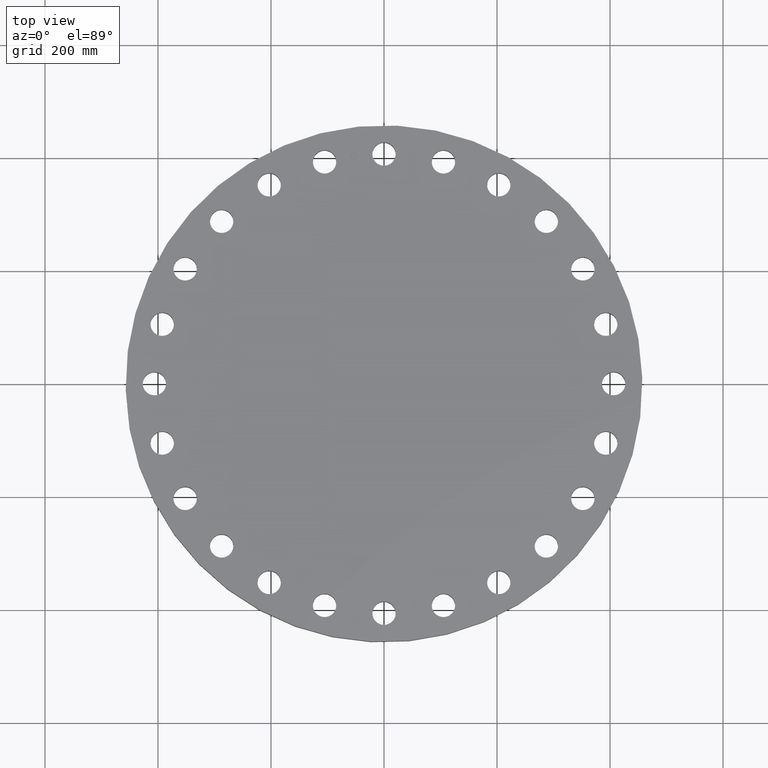
[diagram: clean part render]
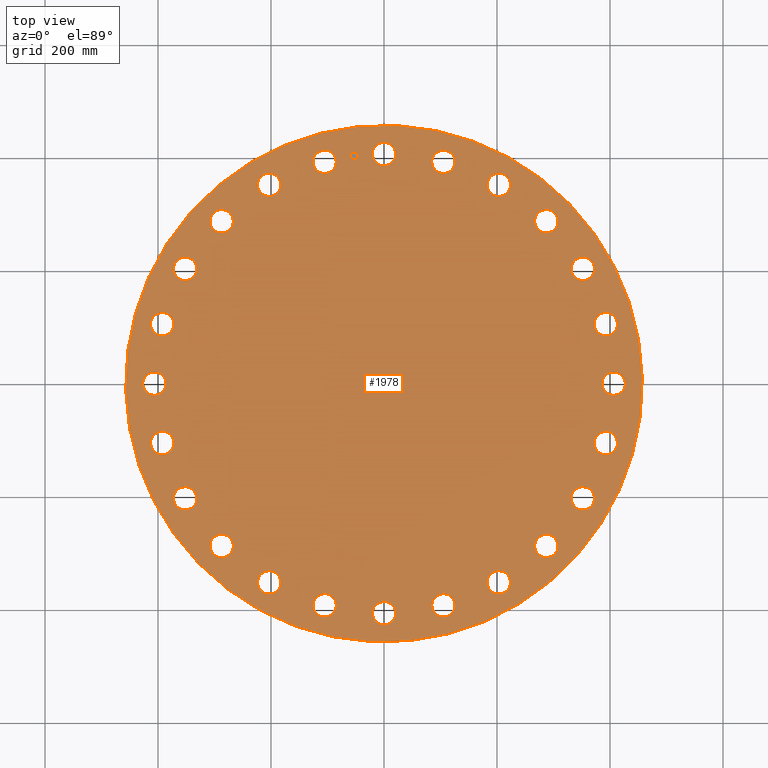
[diagram: same view with one face highlighted and labeled with its STEP entity id]
A machine part, top view. The second image highlights one B-rep face of the part: STEP entity #1978.
In plain terms, the highlighted planar face has unit normal (0, 0, -1).
Its self-contained STEP definition (entity closure, byte-faithful):
#126=AXIS2_PLACEMENT_3D('Circle Axis2P3D',#124,#125,$) ;
#143=AXIS2_PLACEMENT_3D('Circle Axis2P3D',#141,#142,$) ;
#183=AXIS2_PLACEMENT_3D('Circle Axis2P3D',#181,#182,$) ;
#200=AXIS2_PLACEMENT_3D('Circle Axis2P3D',#198,#199,$) ;
#240=AXIS2_PLACEMENT_3D('Circle Axis2P3D',#238,#239,$) ;
#257=AXIS2_PLACEMENT_3D('Circle Axis2P3D',#255,#256,$) ;
#297=AXIS2_PLACEMENT_3D('Circle Axis2P3D',#295,#296,$) ;
#314=AXIS2_PLACEMENT_3D('Circle Axis2P3D',#312,#313,$) ;
#354=AXIS2_PLACEMENT_3D('Circle Axis2P3D',#352,#353,$) ;
#371=AXIS2_PLACEMENT_3D('Circle Axis2P3D',#369,#370,$) ;
#411=AXIS2_PLACEMENT_3D('Circle Axis2P3D',#409,#410,$) ;
#428=AXIS2_PLACEMENT_3D('Circle Axis2P3D',#426,#427,$) ;
#468=AXIS2_PLACEMENT_3D('Circle Axis2P3D',#466,#467,$) ;
#485=AXIS2_PLACEMENT_3D('Circle Axis2P3D',#483,#484,$) ;
#525=AXIS2_PLACEMENT_3D('Circle Axis2P3D',#523,#524,$) ;
#542=AXIS2_PLACEMENT_3D('Circle Axis2P3D',#540,#541,$) ;
#582=AXIS2_PLACEMENT_3D('Circle Axis2P3D',#580,#581,$) ;
#599=AXIS2_PLACEMENT_3D('Circle Axis2P3D',#597,#598,$) ;
#639=AXIS2_PLACEMENT_3D('Circle Axis2P3D',#637,#638,$) ;
#656=AXIS2_PLACEMENT_3D('Circle Axis2P3D',#654,#655,$) ;
#696=AXIS2_PLACEMENT_3D('Circle Axis2P3D',#694,#695,$) ;
#713=AXIS2_PLACEMENT_3D('Circle Axis2P3D',#711,#712,$) ;
#753=AXIS2_PLACEMENT_3D('Circle Axis2P3D',#751,#752,$) ;
#770=AXIS2_PLACEMENT_3D('Circle Axis2P3D',#768,#769,$) ;
#810=AXIS2_PLACEMENT_3D('Circle Axis2P3D',#808,#809,$) ;
#827=AXIS2_PLACEMENT_3D('Circle Axis2P3D',#825,#826,$) ;
#867=AXIS2_PLACEMENT_3D('Circle Axis2P3D',#865,#866,$) ;
#884=AXIS2_PLACEMENT_3D('Circle Axis2P3D',#882,#883,$) ;
#924=AXIS2_PLACEMENT_3D('Circle Axis2P3D',#922,#923,$) ;
#941=AXIS2_PLACEMENT_3D('Circle Axis2P3D',#939,#940,$) ;
#981=AXIS2_PLACEMENT_3D('Circle Axis2P3D',#979,#980,$) ;
#998=AXIS2_PLACEMENT_3D('Circle Axis2P3D',#996,#997,$) ;
#1038=AXIS2_PLACEMENT_3D('Circle Axis2P3D',#1036,#1037,$) ;
#1055=AXIS2_PLACEMENT_3D('Circle Axis2P3D',#1053,#1054,$) ;
#1095=AXIS2_PLACEMENT_3D('Circle Axis2P3D',#1093,#1094,$) ;
#1112=AXIS2_PLACEMENT_3D('Circle Axis2P3D',#1110,#1111,$) ;
#1152=AXIS2_PLACEMENT_3D('Circle Axis2P3D',#1150,#1151,$) ;
#1169=AXIS2_PLACEMENT_3D('Circle Axis2P3D',#1167,#1168,$) ;
#1209=AXIS2_PLACEMENT_3D('Circle Axis2P3D',#1207,#1208,$) ;
#1226=AXIS2_PLACEMENT_3D('Circle Axis2P3D',#1224,#1225,$) ;
#1266=AXIS2_PLACEMENT_3D('Circle Axis2P3D',#1264,#1265,$) ;
#1283=AXIS2_PLACEMENT_3D('Circle Axis2P3D',#1281,#1282,$) ;
#1323=AXIS2_PLACEMENT_3D('Circle Axis2P3D',#1321,#1322,$) ;
#1340=AXIS2_PLACEMENT_3D('Circle Axis2P3D',#1338,#1339,$) ;
#1380=AXIS2_PLACEMENT_3D('Circle Axis2P3D',#1378,#1379,$) ;
#1397=AXIS2_PLACEMENT_3D('Circle Axis2P3D',#1395,#1396,$) ;
#1602=AXIS2_PLACEMENT_3D('Circle Axis2P3D',#1600,#1601,$) ;
#1621=AXIS2_PLACEMENT_3D('Circle Axis2P3D',#1619,#1620,$) ;
#1652=AXIS2_PLACEMENT_3D('Circle Axis2P3D',#1650,#1651,$) ;
#1664=AXIS2_PLACEMENT_3D('Circle Axis2P3D',#1662,#1663,$) ;
#1858=AXIS2_PLACEMENT_3D('Plane Axis2P3D',#1855,#1856,#1857) ;
#1962=AXIS2_PLACEMENT_3D('Circle Axis2P3D',#1960,#1961,$) ;
#1971=AXIS2_PLACEMENT_3D('Circle Axis2P3D',#1969,#1970,$) ;
#107=CARTESIAN_POINT('Vertex',(4.73083481058,14.8922801797,2.69000000001)) ;
#121=CARTESIAN_POINT('Vertex',(3.55137463273,16.0173462617,2.69000000001)) ;
#124=CARTESIAN_POINT('Axis2P3D Location',(4.14110472166,15.4548132207,2.69000000001)) ;
#141=CARTESIAN_POINT('Axis2P3D Location',(4.14110472166,15.4548132207,2.69000000001)) ;
#164=CARTESIAN_POINT('Vertex',(-0.715229787944,-15.6092681861,2.69000000001)) ;
#178=CARTESIAN_POINT('Vertex',(0.715229787944,-16.390731814,2.69000000001)) ;
#181=CARTESIAN_POINT('Axis2P3D Location',(1.95943487864E-015,-16.0000000001,2.69000000001)) ;
#198=CARTESIAN_POINT('Axis2P3D Location',(1.95943487864E-015,-16.0000000001,2.69000000001)) ;
#221=CARTESIAN_POINT('Vertex',(-3.34911696277,15.2625103612,2.69000000001)) ;
#235=CARTESIAN_POINT('Vertex',(-4.93309248054,15.6471160802,2.69000000001)) ;
#238=CARTESIAN_POINT('Axis2P3D Location',(-4.14110472166,15.4548132207,2.69000000001)) ;
#255=CARTESIAN_POINT('Axis2P3D Location',(-4.14110472166,15.4548132207,2.69000000001)) ;
#278=CARTESIAN_POINT('Vertex',(3.34911696277,-15.2625103612,2.69000000001)) ;
#292=CARTESIAN_POINT('Vertex',(4.93309248054,-15.6471160802,2.69000000001)) ;
#295=CARTESIAN_POINT('Axis2P3D Location',(4.14110472166,-15.4548132207,2.69000000001)) ;
#312=CARTESIAN_POINT('Axis2P3D Location',(4.14110472166,-15.4548132207,2.69000000001)) ;
#335=CARTESIAN_POINT('Vertex',(-7.18522692715,13.8756376776,2.69000000001)) ;
#349=CARTESIAN_POINT('Vertex',(-8.81477307292,13.8371752436,2.69000000001)) ;
#352=CARTESIAN_POINT('Axis2P3D Location',(-8.00000000003,13.8564064606,2.69000000001)) ;
#369=CARTESIAN_POINT('Axis2P3D Location',(-8.00000000003,13.8564064606,2.69000000001)) ;
#392=CARTESIAN_POINT('Vertex',(7.18522692715,-13.8756376776,2.69000000001)) ;
#406=CARTESIAN_POINT('Vertex',(8.81477307292,-13.8371752436,2.69000000001)) ;
#409=CARTESIAN_POINT('Axis2P3D Location',(8.00000000003,-13.8564064606,2.69000000001)) ;
#426=CARTESIAN_POINT('Axis2P3D Location',(8.00000000003,-13.8564064606,2.69000000001)) ;
#449=CARTESIAN_POINT('Vertex',(-10.5316755506,11.5431632169,2.69000000001)) ;
#463=CARTESIAN_POINT('Vertex',(-12.0957414475,11.0842537811,2.69000000001)) ;
#466=CARTESIAN_POINT('Axis2P3D Location',(-11.313708499,11.313708499,2.69000000001)) ;
#483=CARTESIAN_POINT('Axis2P3D Location',(-11.313708499,11.313708499,2.69000000001)) ;
#506=CARTESIAN_POINT('Vertex',(10.5316755506,-11.5431632169,2.69000000001)) ;
#520=CARTESIAN_POINT('Vertex',(12.0957414475,-11.0842537811,2.69000000001)) ;
#523=CARTESIAN_POINT('Axis2P3D Location',(11.313708499,-11.313708499,2.69000000001)) ;
#540=CARTESIAN_POINT('Axis2P3D Location',(11.313708499,-11.313708499,2.69000000001)) ;
#563=CARTESIAN_POINT('Vertex',(-13.1604078897,8.42404125895,2.69000000001)) ;
#577=CARTESIAN_POINT('Vertex',(-14.5524050315,7.57595874111,2.69000000001)) ;
#580=CARTESIAN_POINT('Axis2P3D Location',(-13.8564064606,8.00000000003,2.69000000001)) ;
#597=CARTESIAN_POINT('Axis2P3D Location',(-13.8564064606,8.00000000003,2.69000000001)) ;
#620=CARTESIAN_POINT('Vertex',(13.1604078897,-8.42404125895,2.69000000001)) ;
#634=CARTESIAN_POINT('Vertex',(14.5524050315,-7.57595874111,2.69000000001)) ;
#637=CARTESIAN_POINT('Axis2P3D Location',(13.8564064606,-8.00000000003,2.69000000001)) ;
#654=CARTESIAN_POINT('Axis2P3D Location',(13.8564064606,-8.00000000003,2.69000000001)) ;
#677=CARTESIAN_POINT('Vertex',(-14.8922801797,4.73083481058,2.69000000001)) ;
#691=CARTESIAN_POINT('Vertex',(-16.0173462617,3.55137463273,2.69000000001)) ;
#694=CARTESIAN_POINT('Axis2P3D Location',(-15.4548132207,4.14110472166,2.69000000001)) ;
#711=CARTESIAN_POINT('Axis2P3D Location',(-15.4548132207,4.14110472166,2.69000000001)) ;
#734=CARTESIAN_POINT('Vertex',(14.8922801797,-4.73083481058,2.69000000001)) ;
#748=CARTESIAN_POINT('Vertex',(16.0173462617,-3.55137463273,2.69000000001)) ;
#751=CARTESIAN_POINT('Axis2P3D Location',(15.4548132207,-4.14110472166,2.69000000001)) ;
#768=CARTESIAN_POINT('Axis2P3D Location',(15.4548132207,-4.14110472166,2.69000000001)) ;
#791=CARTESIAN_POINT('Vertex',(-15.6092681861,0.715229787944,2.69000000001)) ;
#805=CARTESIAN_POINT('Vertex',(-16.390731814,-0.715229787944,2.69000000001)) ;
#808=CARTESIAN_POINT('Axis2P3D Location',(-16.0000000001,-7.01222441556E-016,2.69000000001)) ;
#825=CARTESIAN_POINT('Axis2P3D Location',(-16.0000000001,-7.01222441556E-016,2.69000000001)) ;
#848=CARTESIAN_POINT('Vertex',(15.6092681861,-0.715229787944,2.69000000001)) ;
#862=CARTESIAN_POINT('Vertex',(16.390731814,0.715229787944,2.69000000001)) ;
#865=CARTESIAN_POINT('Axis2P3D Location',(16.0000000001,9.79717439322E-016,2.69000000001)) ;
#882=CARTESIAN_POINT('Axis2P3D Location',(16.0000000001,9.79717439322E-016,2.69000000001)) ;
#905=CARTESIAN_POINT('Vertex',(-15.2625103612,-3.34911696277,2.69000000001)) ;
#919=CARTESIAN_POINT('Vertex',(-15.6471160802,-4.93309248054,2.69000000001)) ;
#922=CARTESIAN_POINT('Axis2P3D Location',(-15.4548132207,-4.14110472166,2.69000000001)) ;
#939=CARTESIAN_POINT('Axis2P3D Location',(-15.4548132207,-4.14110472166,2.69000000001)) ;
#962=CARTESIAN_POINT('Vertex',(15.2625103612,3.34911696277,2.69000000001)) ;
#976=CARTESIAN_POINT('Vertex',(15.6471160802,4.93309248054,2.69000000001)) ;
#979=CARTESIAN_POINT('Axis2P3D Location',(15.4548132207,4.14110472166,2.69000000001)) ;
#996=CARTESIAN_POINT('Axis2P3D Location',(15.4548132207,4.14110472166,2.69000000001)) ;
#1019=CARTESIAN_POINT('Vertex',(-13.8756376776,-7.18522692715,2.69000000001)) ;
#1033=CARTESIAN_POINT('Vertex',(-13.8371752436,-8.81477307292,2.69000000001)) ;
#1036=CARTESIAN_POINT('Axis2P3D Location',(-13.8564064606,-8.00000000003,2.69000000001)) ;
#1053=CARTESIAN_POINT('Axis2P3D Location',(-13.8564064606,-8.00000000003,2.69000000001)) ;
#1076=CARTESIAN_POINT('Vertex',(13.8756376776,7.18522692715,2.69000000001)) ;
#1090=CARTESIAN_POINT('Vertex',(13.8371752436,8.81477307292,2.69000000001)) ;
#1093=CARTESIAN_POINT('Axis2P3D Location',(13.8564064606,8.00000000003,2.69000000001)) ;
#1110=CARTESIAN_POINT('Axis2P3D Location',(13.8564064606,8.00000000003,2.69000000001)) ;
#1133=CARTESIAN_POINT('Vertex',(-11.5431632169,-10.5316755506,2.69000000001)) ;
#1147=CARTESIAN_POINT('Vertex',(-11.0842537811,-12.0957414475,2.69000000001)) ;
#1150=CARTESIAN_POINT('Axis2P3D Location',(-11.313708499,-11.313708499,2.69000000001)) ;
#1167=CARTESIAN_POINT('Axis2P3D Location',(-11.313708499,-11.313708499,2.69000000001)) ;
#1190=CARTESIAN_POINT('Vertex',(11.5431632169,10.5316755506,2.69000000001)) ;
#1204=CARTESIAN_POINT('Vertex',(11.0842537811,12.0957414475,2.69000000001)) ;
#1207=CARTESIAN_POINT('Axis2P3D Location',(11.313708499,11.313708499,2.69000000001)) ;
#1224=CARTESIAN_POINT('Axis2P3D Location',(11.313708499,11.313708499,2.69000000001)) ;
#1247=CARTESIAN_POINT('Vertex',(-8.42404125895,-13.1604078897,2.69000000001)) ;
#1261=CARTESIAN_POINT('Vertex',(-7.57595874111,-14.5524050315,2.69000000001)) ;
#1264=CARTESIAN_POINT('Axis2P3D Location',(-8.00000000003,-13.8564064606,2.69000000001)) ;
#1281=CARTESIAN_POINT('Axis2P3D Location',(-8.00000000003,-13.8564064606,2.69000000001)) ;
#1304=CARTESIAN_POINT('Vertex',(8.42404125895,13.1604078897,2.69000000001)) ;
#1318=CARTESIAN_POINT('Vertex',(7.57595874111,14.5524050315,2.69000000001)) ;
#1321=CARTESIAN_POINT('Axis2P3D Location',(8.00000000003,13.8564064606,2.69000000001)) ;
#1338=CARTESIAN_POINT('Axis2P3D Location',(8.00000000003,13.8564064606,2.69000000001)) ;
#1361=CARTESIAN_POINT('Vertex',(-4.73083481058,-14.8922801797,2.69000000001)) ;
#1375=CARTESIAN_POINT('Vertex',(-3.55137463273,-16.0173462617,2.69000000001)) ;
#1378=CARTESIAN_POINT('Axis2P3D Location',(-4.14110472166,-15.4548132207,2.69000000001)) ;
#1395=CARTESIAN_POINT('Axis2P3D Location',(-4.14110472166,-15.4548132207,2.69000000001)) ;
#1597=CARTESIAN_POINT('Vertex',(8.62965969491,15.7964861141,2.69000000001)) ;
#1600=CARTESIAN_POINT('Axis2P3D Location',(0.,0.,2.69000000001)) ;
#1604=CARTESIAN_POINT('Vertex',(-8.62965969491,-15.7964861141,2.69000000001)) ;
#1619=CARTESIAN_POINT('Axis2P3D Location',(0.,0.,2.69000000001)) ;
#1640=CARTESIAN_POINT('Vertex',(0.715229787944,15.6092681861,2.69000000001)) ;
#1647=CARTESIAN_POINT('Vertex',(-0.715229787944,16.390731814,2.69000000001)) ;
#1650=CARTESIAN_POINT('Axis2P3D Location',(0.,16.0000000001,2.69000000001)) ;
#1662=CARTESIAN_POINT('Axis2P3D Location',(0.,16.0000000001,2.69000000001)) ;
#1855=CARTESIAN_POINT('Axis2P3D Location',(0.,18.0000000001,2.69000000001)) ;
#1960=CARTESIAN_POINT('Axis2P3D Location',(-2.08841907553,15.863117782,2.69000000001)) ;
#1964=CARTESIAN_POINT('Vertex',(-2.33380167872,15.8308125495,2.69000000001)) ;
#1966=CARTESIAN_POINT('Vertex',(-1.84303647234,15.8954230146,2.69000000001)) ;
#1969=CARTESIAN_POINT('Axis2P3D Location',(-2.08841907553,15.863117782,2.69000000001)) ;
#125=DIRECTION('Axis2P3D Direction',(0.,-0.,-0.0393700787402)) ;
#142=DIRECTION('Axis2P3D Direction',(0.,-0.,-0.0393700787402)) ;
#182=DIRECTION('Axis2P3D Direction',(-0.,0.,-0.0393700787402)) ;
#199=DIRECTION('Axis2P3D Direction',(-0.,0.,-0.0393700787402)) ;
#239=DIRECTION('Axis2P3D Direction',(0.,0.,-0.0393700787402)) ;
#256=DIRECTION('Axis2P3D Direction',(0.,0.,-0.0393700787402)) ;
#296=DIRECTION('Axis2P3D Direction',(-0.,0.,-0.0393700787402)) ;
#313=DIRECTION('Axis2P3D Direction',(-0.,0.,-0.0393700787402)) ;
#353=DIRECTION('Axis2P3D Direction',(0.,0.,-0.0393700787402)) ;
#370=DIRECTION('Axis2P3D Direction',(0.,0.,-0.0393700787402)) ;
#410=DIRECTION('Axis2P3D Direction',(-0.,0.,-0.0393700787402)) ;
#427=DIRECTION('Axis2P3D Direction',(-0.,0.,-0.0393700787402)) ;
#467=DIRECTION('Axis2P3D Direction',(0.,0.,-0.0393700787402)) ;
#484=DIRECTION('Axis2P3D Direction',(0.,0.,-0.0393700787402)) ;
#524=DIRECTION('Axis2P3D Direction',(-0.,0.,-0.0393700787402)) ;
#541=DIRECTION('Axis2P3D Direction',(-0.,0.,-0.0393700787402)) ;
#581=DIRECTION('Axis2P3D Direction',(0.,0.,-0.0393700787402)) ;
#598=DIRECTION('Axis2P3D Direction',(0.,0.,-0.0393700787402)) ;
#638=DIRECTION('Axis2P3D Direction',(-0.,0.,-0.0393700787402)) ;
#655=DIRECTION('Axis2P3D Direction',(-0.,0.,-0.0393700787402)) ;
#695=DIRECTION('Axis2P3D Direction',(0.,0.,-0.0393700787402)) ;
#712=DIRECTION('Axis2P3D Direction',(0.,0.,-0.0393700787402)) ;
#752=DIRECTION('Axis2P3D Direction',(-0.,0.,-0.0393700787402)) ;
#769=DIRECTION('Axis2P3D Direction',(-0.,0.,-0.0393700787402)) ;
#809=DIRECTION('Axis2P3D Direction',(0.,0.,-0.0393700787402)) ;
#826=DIRECTION('Axis2P3D Direction',(0.,0.,-0.0393700787402)) ;
#866=DIRECTION('Axis2P3D Direction',(0.,-0.,-0.0393700787402)) ;
#883=DIRECTION('Axis2P3D Direction',(0.,-0.,-0.0393700787402)) ;
#923=DIRECTION('Axis2P3D Direction',(0.,0.,-0.0393700787402)) ;
#940=DIRECTION('Axis2P3D Direction',(0.,0.,-0.0393700787402)) ;
#980=DIRECTION('Axis2P3D Direction',(0.,-0.,-0.0393700787402)) ;
#997=DIRECTION('Axis2P3D Direction',(0.,-0.,-0.0393700787402)) ;
#1037=DIRECTION('Axis2P3D Direction',(0.,0.,-0.0393700787402)) ;
#1054=DIRECTION('Axis2P3D Direction',(0.,0.,-0.0393700787402)) ;
#1094=DIRECTION('Axis2P3D Direction',(0.,-0.,-0.0393700787402)) ;
#1111=DIRECTION('Axis2P3D Direction',(0.,-0.,-0.0393700787402)) ;
#1151=DIRECTION('Axis2P3D Direction',(0.,0.,-0.0393700787402)) ;
#1168=DIRECTION('Axis2P3D Direction',(0.,0.,-0.0393700787402)) ;
#1208=DIRECTION('Axis2P3D Direction',(0.,-0.,-0.0393700787402)) ;
#1225=DIRECTION('Axis2P3D Direction',(0.,-0.,-0.0393700787402)) ;
#1265=DIRECTION('Axis2P3D Direction',(0.,0.,-0.0393700787402)) ;
#1282=DIRECTION('Axis2P3D Direction',(0.,0.,-0.0393700787402)) ;
#1322=DIRECTION('Axis2P3D Direction',(0.,-0.,-0.0393700787402)) ;
#1339=DIRECTION('Axis2P3D Direction',(0.,-0.,-0.0393700787402)) ;
#1379=DIRECTION('Axis2P3D Direction',(0.,0.,-0.0393700787402)) ;
#1396=DIRECTION('Axis2P3D Direction',(0.,0.,-0.0393700787402)) ;
#1601=DIRECTION('Axis2P3D Direction',(0.,0.,-0.0393700787402)) ;
#1620=DIRECTION('Axis2P3D Direction',(0.,0.,-0.0393700787402)) ;
#1651=DIRECTION('Axis2P3D Direction',(0.,-0.,-0.0393700787402)) ;
#1663=DIRECTION('Axis2P3D Direction',(0.,-0.,-0.0393700787402)) ;
#1856=DIRECTION('Axis2P3D Direction',(0.,0.,-0.0393700787402)) ;
#1857=DIRECTION('Axis2P3D XDirection',(0.0393700787402,0.,0.)) ;
#1961=DIRECTION('Axis2P3D Direction',(0.,0.,-0.0393700787402)) ;
#1970=DIRECTION('Axis2P3D Direction',(0.,0.,-0.0393700787402)) ;
#1861=ORIENTED_EDGE('',*,*,#1606,.F.) ;
#1862=ORIENTED_EDGE('',*,*,#1623,.F.) ;
#1865=ORIENTED_EDGE('',*,*,#1666,.T.) ;
#1866=ORIENTED_EDGE('',*,*,#1654,.T.) ;
#1869=ORIENTED_EDGE('',*,*,#128,.T.) ;
#1870=ORIENTED_EDGE('',*,*,#145,.T.) ;
#1873=ORIENTED_EDGE('',*,*,#1325,.T.) ;
#1874=ORIENTED_EDGE('',*,*,#1342,.T.) ;
#1877=ORIENTED_EDGE('',*,*,#1211,.T.) ;
#1878=ORIENTED_EDGE('',*,*,#1228,.T.) ;
#1881=ORIENTED_EDGE('',*,*,#1097,.T.) ;
#1882=ORIENTED_EDGE('',*,*,#1114,.T.) ;
#1885=ORIENTED_EDGE('',*,*,#983,.T.) ;
#1886=ORIENTED_EDGE('',*,*,#1000,.T.) ;
#1889=ORIENTED_EDGE('',*,*,#869,.T.) ;
#1890=ORIENTED_EDGE('',*,*,#886,.T.) ;
#1893=ORIENTED_EDGE('',*,*,#755,.T.) ;
#1894=ORIENTED_EDGE('',*,*,#772,.T.) ;
#1897=ORIENTED_EDGE('',*,*,#641,.T.) ;
#1898=ORIENTED_EDGE('',*,*,#658,.T.) ;
#1901=ORIENTED_EDGE('',*,*,#527,.T.) ;
#1902=ORIENTED_EDGE('',*,*,#544,.T.) ;
#1905=ORIENTED_EDGE('',*,*,#413,.T.) ;
#1906=ORIENTED_EDGE('',*,*,#430,.T.) ;
#1909=ORIENTED_EDGE('',*,*,#299,.T.) ;
#1910=ORIENTED_EDGE('',*,*,#316,.T.) ;
#1913=ORIENTED_EDGE('',*,*,#185,.T.) ;
#1914=ORIENTED_EDGE('',*,*,#202,.T.) ;
#1917=ORIENTED_EDGE('',*,*,#1382,.T.) ;
#1918=ORIENTED_EDGE('',*,*,#1399,.T.) ;
#1921=ORIENTED_EDGE('',*,*,#1268,.T.) ;
#1922=ORIENTED_EDGE('',*,*,#1285,.T.) ;
#1925=ORIENTED_EDGE('',*,*,#1154,.T.) ;
#1926=ORIENTED_EDGE('',*,*,#1171,.T.) ;
#1929=ORIENTED_EDGE('',*,*,#1040,.T.) ;
#1930=ORIENTED_EDGE('',*,*,#1057,.T.) ;
#1933=ORIENTED_EDGE('',*,*,#926,.T.) ;
#1934=ORIENTED_EDGE('',*,*,#943,.T.) ;
#1937=ORIENTED_EDGE('',*,*,#812,.T.) ;
#1938=ORIENTED_EDGE('',*,*,#829,.T.) ;
#1941=ORIENTED_EDGE('',*,*,#698,.T.) ;
#1942=ORIENTED_EDGE('',*,*,#715,.T.) ;
#1945=ORIENTED_EDGE('',*,*,#584,.T.) ;
#1946=ORIENTED_EDGE('',*,*,#601,.T.) ;
#1949=ORIENTED_EDGE('',*,*,#470,.T.) ;
#1950=ORIENTED_EDGE('',*,*,#487,.T.) ;
#1953=ORIENTED_EDGE('',*,*,#356,.T.) ;
#1954=ORIENTED_EDGE('',*,*,#373,.T.) ;
#1957=ORIENTED_EDGE('',*,*,#242,.T.) ;
#1958=ORIENTED_EDGE('',*,*,#259,.T.) ;
#1975=ORIENTED_EDGE('',*,*,#1968,.T.) ;
#1976=ORIENTED_EDGE('',*,*,#1973,.T.) ;
#1867=FACE_BOUND('',#1864,.T.) ;
#1871=FACE_BOUND('',#1868,.T.) ;
#1875=FACE_BOUND('',#1872,.T.) ;
#1879=FACE_BOUND('',#1876,.T.) ;
#1883=FACE_BOUND('',#1880,.T.) ;
#1887=FACE_BOUND('',#1884,.T.) ;
#1891=FACE_BOUND('',#1888,.T.) ;
#1895=FACE_BOUND('',#1892,.T.) ;
#1899=FACE_BOUND('',#1896,.T.) ;
#1903=FACE_BOUND('',#1900,.T.) ;
#1907=FACE_BOUND('',#1904,.T.) ;
#1911=FACE_BOUND('',#1908,.T.) ;
#1915=FACE_BOUND('',#1912,.T.) ;
#1919=FACE_BOUND('',#1916,.T.) ;
#1923=FACE_BOUND('',#1920,.T.) ;
#1927=FACE_BOUND('',#1924,.T.) ;
#1931=FACE_BOUND('',#1928,.T.) ;
#1935=FACE_BOUND('',#1932,.T.) ;
#1939=FACE_BOUND('',#1936,.T.) ;
#1943=FACE_BOUND('',#1940,.T.) ;
#1947=FACE_BOUND('',#1944,.T.) ;
#1951=FACE_BOUND('',#1948,.T.) ;
#1955=FACE_BOUND('',#1952,.T.) ;
#1959=FACE_BOUND('',#1956,.T.) ;
#1977=FACE_BOUND('',#1974,.T.) ;
#1978=ADVANCED_FACE('PartBody',(#1863,#1867,#1871,#1875,#1879,#1883,#1887,#1891,#1895,#1899,#1903,#1907,#1911,#1915,#1919,#1923,#1927,#1931,#1935,#1939,#1943,#1947,#1951,#1955,#1959,#1977),#1859,.F.) ;
#127=CIRCLE('generated circle',#126,0.815000000003) ;
#144=CIRCLE('generated circle',#143,0.815000000003) ;
#184=CIRCLE('generated circle',#183,0.815000000003) ;
#201=CIRCLE('generated circle',#200,0.815000000003) ;
#241=CIRCLE('generated circle',#240,0.815000000003) ;
#258=CIRCLE('generated circle',#257,0.815000000003) ;
#298=CIRCLE('generated circle',#297,0.815000000003) ;
#315=CIRCLE('generated circle',#314,0.815000000003) ;
#355=CIRCLE('generated circle',#354,0.815000000003) ;
#372=CIRCLE('generated circle',#371,0.815000000003) ;
#412=CIRCLE('generated circle',#411,0.815000000003) ;
#429=CIRCLE('generated circle',#428,0.815000000003) ;
#469=CIRCLE('generated circle',#468,0.815000000003) ;
#486=CIRCLE('generated circle',#485,0.815000000003) ;
#526=CIRCLE('generated circle',#525,0.815000000003) ;
#543=CIRCLE('generated circle',#542,0.815000000003) ;
#583=CIRCLE('generated circle',#582,0.815000000003) ;
#600=CIRCLE('generated circle',#599,0.815000000003) ;
#640=CIRCLE('generated circle',#639,0.815000000003) ;
#657=CIRCLE('generated circle',#656,0.815000000003) ;
#697=CIRCLE('generated circle',#696,0.815000000003) ;
#714=CIRCLE('generated circle',#713,0.815000000003) ;
#754=CIRCLE('generated circle',#753,0.815000000003) ;
#771=CIRCLE('generated circle',#770,0.815000000003) ;
#811=CIRCLE('generated circle',#810,0.815000000003) ;
#828=CIRCLE('generated circle',#827,0.815000000003) ;
#868=CIRCLE('generated circle',#867,0.815000000003) ;
#885=CIRCLE('generated circle',#884,0.815000000003) ;
#925=CIRCLE('generated circle',#924,0.815000000003) ;
#942=CIRCLE('generated circle',#941,0.815000000003) ;
#982=CIRCLE('generated circle',#981,0.815000000003) ;
#999=CIRCLE('generated circle',#998,0.815000000003) ;
#1039=CIRCLE('generated circle',#1038,0.815000000003) ;
#1056=CIRCLE('generated circle',#1055,0.815000000003) ;
#1096=CIRCLE('generated circle',#1095,0.815000000003) ;
#1113=CIRCLE('generated circle',#1112,0.815000000003) ;
#1153=CIRCLE('generated circle',#1152,0.815000000003) ;
#1170=CIRCLE('generated circle',#1169,0.815000000003) ;
#1210=CIRCLE('generated circle',#1209,0.815000000003) ;
#1227=CIRCLE('generated circle',#1226,0.815000000003) ;
#1267=CIRCLE('generated circle',#1266,0.815000000003) ;
#1284=CIRCLE('generated circle',#1283,0.815000000003) ;
#1324=CIRCLE('generated circle',#1323,0.815000000003) ;
#1341=CIRCLE('generated circle',#1340,0.815000000003) ;
#1381=CIRCLE('generated circle',#1380,0.815000000003) ;
#1398=CIRCLE('generated circle',#1397,0.815000000003) ;
#1603=CIRCLE('generated circle',#1602,18.0000000001) ;
#1622=CIRCLE('generated circle',#1621,18.0000000001) ;
#1653=CIRCLE('generated circle',#1652,0.815000000003) ;
#1665=CIRCLE('generated circle',#1664,0.815000000003) ;
#1963=CIRCLE('generated circle',#1962,0.247500000001) ;
#1972=CIRCLE('generated circle',#1971,0.247500000001) ;
#128=EDGE_CURVE('',#108,#122,#127,.T.) ;
#145=EDGE_CURVE('',#122,#108,#144,.T.) ;
#185=EDGE_CURVE('',#165,#179,#184,.T.) ;
#202=EDGE_CURVE('',#179,#165,#201,.T.) ;
#242=EDGE_CURVE('',#222,#236,#241,.T.) ;
#259=EDGE_CURVE('',#236,#222,#258,.T.) ;
#299=EDGE_CURVE('',#279,#293,#298,.T.) ;
#316=EDGE_CURVE('',#293,#279,#315,.T.) ;
#356=EDGE_CURVE('',#336,#350,#355,.T.) ;
#373=EDGE_CURVE('',#350,#336,#372,.T.) ;
#413=EDGE_CURVE('',#393,#407,#412,.T.) ;
#430=EDGE_CURVE('',#407,#393,#429,.T.) ;
#470=EDGE_CURVE('',#450,#464,#469,.T.) ;
#487=EDGE_CURVE('',#464,#450,#486,.T.) ;
#527=EDGE_CURVE('',#507,#521,#526,.T.) ;
#544=EDGE_CURVE('',#521,#507,#543,.T.) ;
#584=EDGE_CURVE('',#564,#578,#583,.T.) ;
#601=EDGE_CURVE('',#578,#564,#600,.T.) ;
#641=EDGE_CURVE('',#621,#635,#640,.T.) ;
#658=EDGE_CURVE('',#635,#621,#657,.T.) ;
#698=EDGE_CURVE('',#678,#692,#697,.T.) ;
#715=EDGE_CURVE('',#692,#678,#714,.T.) ;
#755=EDGE_CURVE('',#735,#749,#754,.T.) ;
#772=EDGE_CURVE('',#749,#735,#771,.T.) ;
#812=EDGE_CURVE('',#792,#806,#811,.T.) ;
#829=EDGE_CURVE('',#806,#792,#828,.T.) ;
#869=EDGE_CURVE('',#849,#863,#868,.T.) ;
#886=EDGE_CURVE('',#863,#849,#885,.T.) ;
#926=EDGE_CURVE('',#906,#920,#925,.T.) ;
#943=EDGE_CURVE('',#920,#906,#942,.T.) ;
#983=EDGE_CURVE('',#963,#977,#982,.T.) ;
#1000=EDGE_CURVE('',#977,#963,#999,.T.) ;
#1040=EDGE_CURVE('',#1020,#1034,#1039,.T.) ;
#1057=EDGE_CURVE('',#1034,#1020,#1056,.T.) ;
#1097=EDGE_CURVE('',#1077,#1091,#1096,.T.) ;
#1114=EDGE_CURVE('',#1091,#1077,#1113,.T.) ;
#1154=EDGE_CURVE('',#1134,#1148,#1153,.T.) ;
#1171=EDGE_CURVE('',#1148,#1134,#1170,.T.) ;
#1211=EDGE_CURVE('',#1191,#1205,#1210,.T.) ;
#1228=EDGE_CURVE('',#1205,#1191,#1227,.T.) ;
#1268=EDGE_CURVE('',#1248,#1262,#1267,.T.) ;
#1285=EDGE_CURVE('',#1262,#1248,#1284,.T.) ;
#1325=EDGE_CURVE('',#1305,#1319,#1324,.T.) ;
#1342=EDGE_CURVE('',#1319,#1305,#1341,.T.) ;
#1382=EDGE_CURVE('',#1362,#1376,#1381,.T.) ;
#1399=EDGE_CURVE('',#1376,#1362,#1398,.T.) ;
#1606=EDGE_CURVE('',#1598,#1605,#1603,.T.) ;
#1623=EDGE_CURVE('',#1605,#1598,#1622,.T.) ;
#1654=EDGE_CURVE('',#1641,#1648,#1653,.T.) ;
#1666=EDGE_CURVE('',#1648,#1641,#1665,.T.) ;
#1968=EDGE_CURVE('',#1965,#1967,#1963,.T.) ;
#1973=EDGE_CURVE('',#1967,#1965,#1972,.T.) ;
#1860=EDGE_LOOP('',(#1861,#1862)) ;
#1864=EDGE_LOOP('',(#1865,#1866)) ;
#1868=EDGE_LOOP('',(#1869,#1870)) ;
#1872=EDGE_LOOP('',(#1873,#1874)) ;
#1876=EDGE_LOOP('',(#1877,#1878)) ;
#1880=EDGE_LOOP('',(#1881,#1882)) ;
#1884=EDGE_LOOP('',(#1885,#1886)) ;
#1888=EDGE_LOOP('',(#1889,#1890)) ;
#1892=EDGE_LOOP('',(#1893,#1894)) ;
#1896=EDGE_LOOP('',(#1897,#1898)) ;
#1900=EDGE_LOOP('',(#1901,#1902)) ;
#1904=EDGE_LOOP('',(#1905,#1906)) ;
#1908=EDGE_LOOP('',(#1909,#1910)) ;
#1912=EDGE_LOOP('',(#1913,#1914)) ;
#1916=EDGE_LOOP('',(#1917,#1918)) ;
#1920=EDGE_LOOP('',(#1921,#1922)) ;
#1924=EDGE_LOOP('',(#1925,#1926)) ;
#1928=EDGE_LOOP('',(#1929,#1930)) ;
#1932=EDGE_LOOP('',(#1933,#1934)) ;
#1936=EDGE_LOOP('',(#1937,#1938)) ;
#1940=EDGE_LOOP('',(#1941,#1942)) ;
#1944=EDGE_LOOP('',(#1945,#1946)) ;
#1948=EDGE_LOOP('',(#1949,#1950)) ;
#1952=EDGE_LOOP('',(#1953,#1954)) ;
#1956=EDGE_LOOP('',(#1957,#1958)) ;
#1974=EDGE_LOOP('',(#1975,#1976)) ;
#1863=FACE_OUTER_BOUND('',#1860,.T.) ;
#1859=PLANE('',#1858) ;
#108=VERTEX_POINT('',#107) ;
#122=VERTEX_POINT('',#121) ;
#165=VERTEX_POINT('',#164) ;
#179=VERTEX_POINT('',#178) ;
#222=VERTEX_POINT('',#221) ;
#236=VERTEX_POINT('',#235) ;
#279=VERTEX_POINT('',#278) ;
#293=VERTEX_POINT('',#292) ;
#336=VERTEX_POINT('',#335) ;
#350=VERTEX_POINT('',#349) ;
#393=VERTEX_POINT('',#392) ;
#407=VERTEX_POINT('',#406) ;
#450=VERTEX_POINT('',#449) ;
#464=VERTEX_POINT('',#463) ;
#507=VERTEX_POINT('',#506) ;
#521=VERTEX_POINT('',#520) ;
#564=VERTEX_POINT('',#563) ;
#578=VERTEX_POINT('',#577) ;
#621=VERTEX_POINT('',#620) ;
#635=VERTEX_POINT('',#634) ;
#678=VERTEX_POINT('',#677) ;
#692=VERTEX_POINT('',#691) ;
#735=VERTEX_POINT('',#734) ;
#749=VERTEX_POINT('',#748) ;
#792=VERTEX_POINT('',#791) ;
#806=VERTEX_POINT('',#805) ;
#849=VERTEX_POINT('',#848) ;
#863=VERTEX_POINT('',#862) ;
#906=VERTEX_POINT('',#905) ;
#920=VERTEX_POINT('',#919) ;
#963=VERTEX_POINT('',#962) ;
#977=VERTEX_POINT('',#976) ;
#1020=VERTEX_POINT('',#1019) ;
#1034=VERTEX_POINT('',#1033) ;
#1077=VERTEX_POINT('',#1076) ;
#1091=VERTEX_POINT('',#1090) ;
#1134=VERTEX_POINT('',#1133) ;
#1148=VERTEX_POINT('',#1147) ;
#1191=VERTEX_POINT('',#1190) ;
#1205=VERTEX_POINT('',#1204) ;
#1248=VERTEX_POINT('',#1247) ;
#1262=VERTEX_POINT('',#1261) ;
#1305=VERTEX_POINT('',#1304) ;
#1319=VERTEX_POINT('',#1318) ;
#1362=VERTEX_POINT('',#1361) ;
#1376=VERTEX_POINT('',#1375) ;
#1598=VERTEX_POINT('',#1597) ;
#1605=VERTEX_POINT('',#1604) ;
#1641=VERTEX_POINT('',#1640) ;
#1648=VERTEX_POINT('',#1647) ;
#1965=VERTEX_POINT('',#1964) ;
#1967=VERTEX_POINT('',#1966) ;